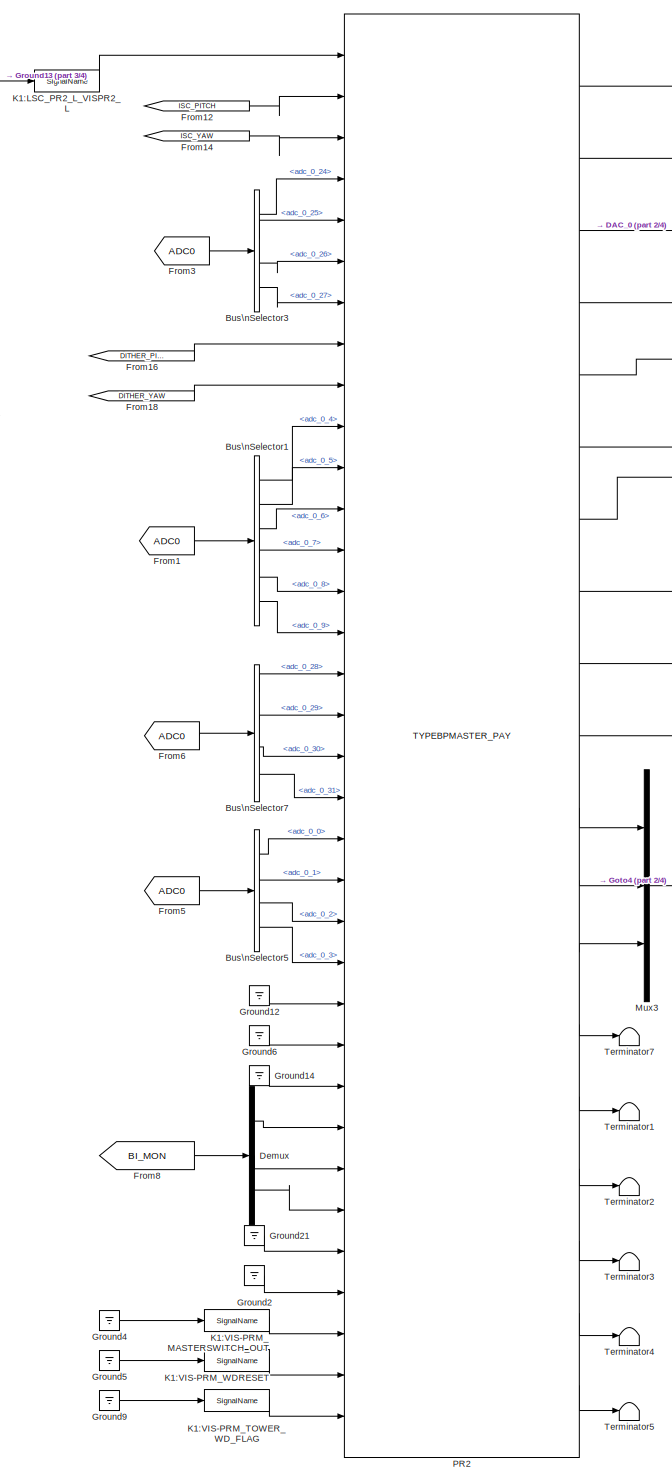
[diagram: root canvas - part 1/4, left side, full height]
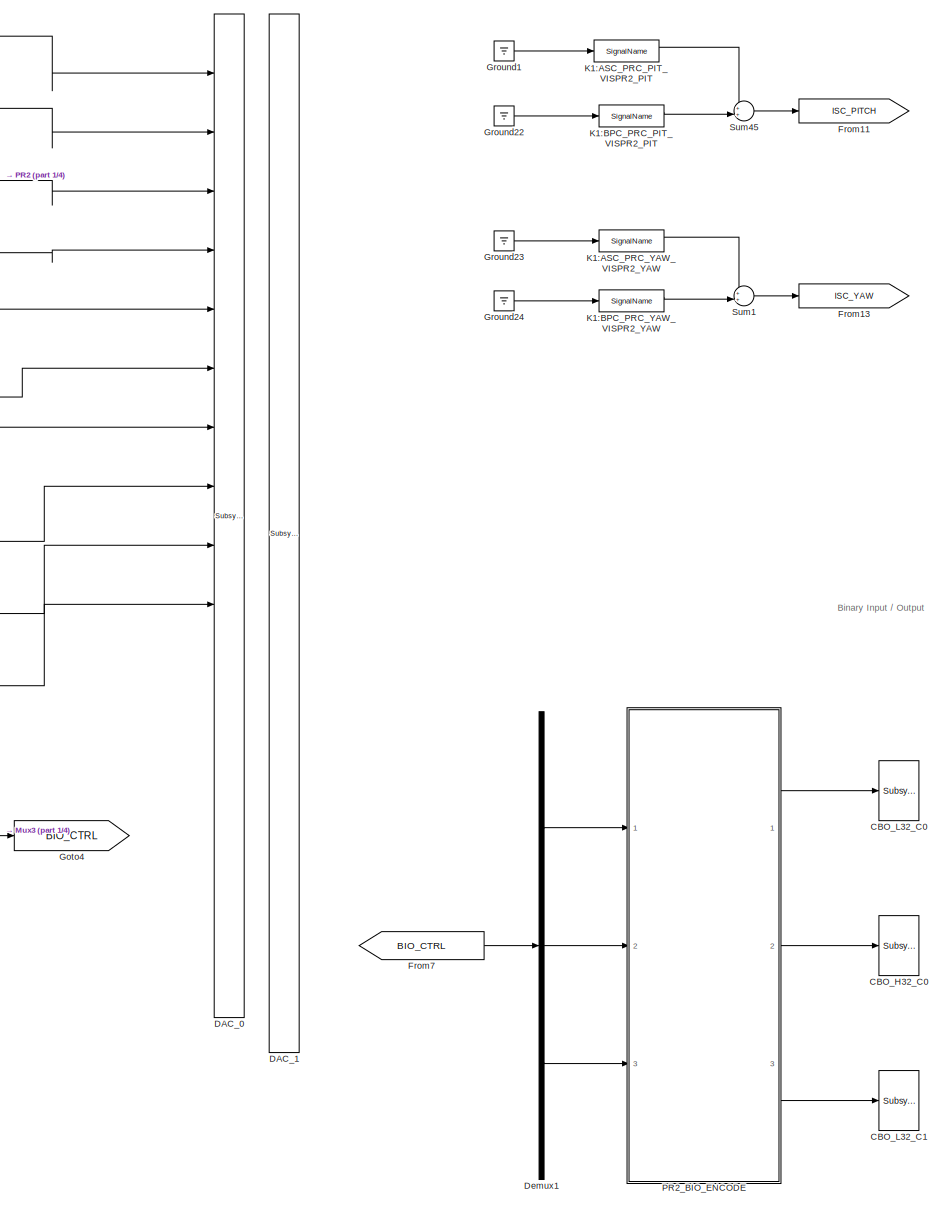
[diagram: root canvas - part 2/4, center side, full height]
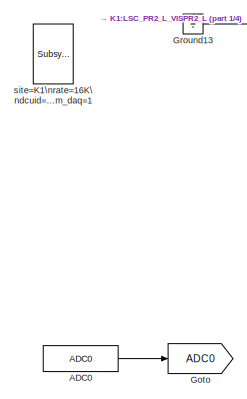
[diagram: root canvas - part 3/4, top left region]
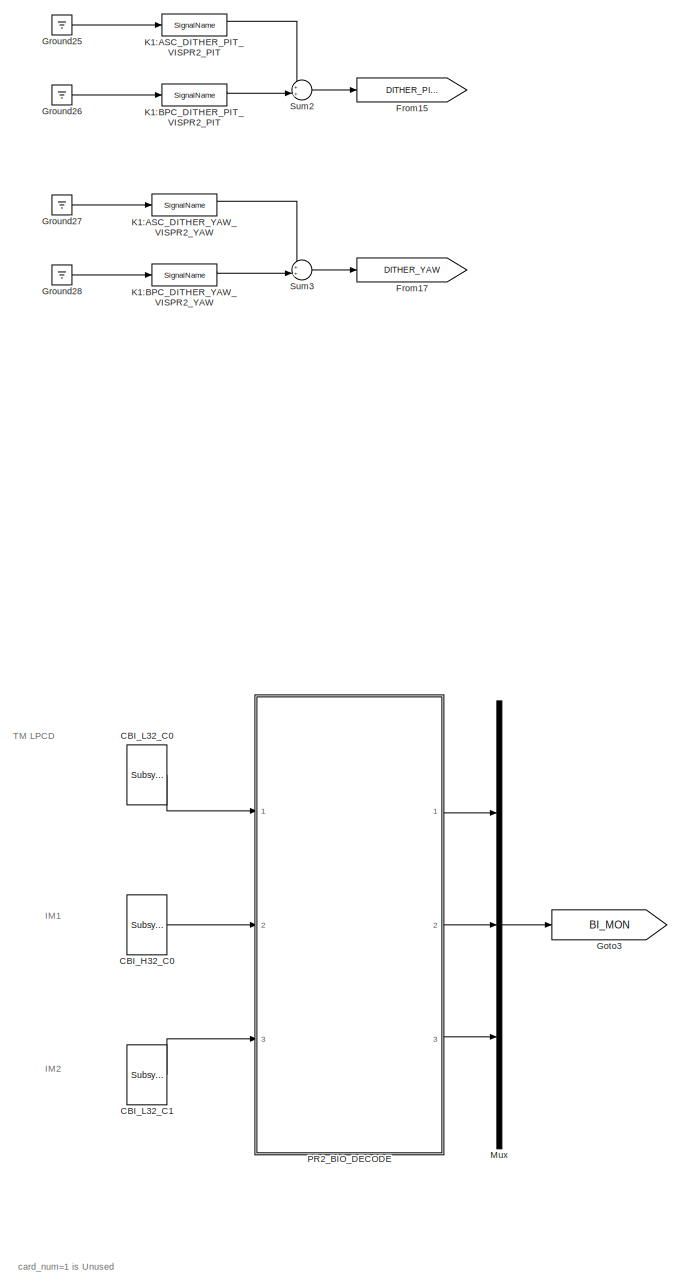
[diagram: root canvas - part 4/4, right side, full height]
MODEL k1vispr2p
KIND model
BLOCK [Reference] ADC0  REF=cdsAdcx0/ADC0
  AttributesFormatString = %<Description>\\n%<Tag>
  Description = type-GSC_16AI64SSA\ncard_num=0
  Ports = [0, 1]
  SID = 5115
  SourceBlock = cdsAdcx0/ADC0
  SourceType = SubSystem
  Tag = cdsAdc
BLOCK [BusSelector] Bus\nSelector1
  AttributesFormatString = %<Description>
  Description = ADC Selector
  OutputSignals = adc_0_4,adc_0_5,adc_0_6,adc_0_7,adc_0_8,adc_0_9
  Ports = [1, 6]
  SID = 5240
BLOCK [BusSelector] Bus\nSelector3
  AttributesFormatString = %<Description>
  Description = ADC Selector
  OutputSignals = adc_0_24,adc_0_25,adc_0_26,adc_0_27
  Ports = [1, 4]
  SID = 5242
BLOCK [BusSelector] Bus\nSelector5
  AttributesFormatString = %<Description>
  Description = ADC Selector
  OutputSignals = adc_0_0,adc_0_1,adc_0_2,adc_0_3
  Ports = [1, 4]
  SID = 5244
BLOCK [BusSelector] Bus\nSelector7
  AttributesFormatString = %<Description>
  Description = ADC Selector
  OutputSignals = adc_0_28,adc_0_29,adc_0_30,adc_0_31
  Ports = [1, 4]
  SID = 5929
BLOCK [Reference] CBI_H32_C0  REF=cdsCDI64/Subsystem
  AttributesFormatString = %<Tag>\\n%<Description>
  Description = card_num=1
  Ports = [0, 1]
  SID = 5271
  SourceBlock = cdsCDI64/Subsystem
  SourceType = SubSystem
  Tag = cdsCDI64
BLOCK [Reference] CBI_L32_C0  REF=cdsCDI64/Subsystem
  AttributesFormatString = %<Tag>\\n%<Description>
  Description = card_num=0
  Ports = [0, 1]
  SID = 5665
  SourceBlock = cdsCDI64/Subsystem
  SourceType = SubSystem
  Tag = cdsCDI64
BLOCK [Reference] CBI_L32_C1  REF=cdsCDI64/Subsystem
  AttributesFormatString = %<Tag>\\n%<Description>
  Description = card_num=2
  Ports = [0, 1]
  SID = 5274
  SourceBlock = cdsCDI64/Subsystem
  SourceType = SubSystem
  Tag = cdsCDI64
BLOCK [Reference] CBO_H32_C0  REF=cdsCDO64/Subsystem
  AttributesFormatString = %<Tag>\\n%<Description>
  Description = card_num=1
  Ports = [1]
  SID = 5276
  SourceBlock = cdsCDO64/Subsystem
  SourceType = SubSystem
  Tag = cdsCDO64
BLOCK [Reference] CBO_L32_C0  REF=cdsCDO64/Subsystem
  AttributesFormatString = %<Tag>\\n%<Description>
  Description = card_num=0
  Ports = [1]
  SID = 5663
  SourceBlock = cdsCDO64/Subsystem
  SourceType = SubSystem
  Tag = cdsCDO64
BLOCK [Reference] CBO_L32_C1  REF=cdsCDO64/Subsystem
  AttributesFormatString = %<Tag>\\n%<Description>
  Description = card_num=2
  Ports = [1]
  SID = 5279
  SourceBlock = cdsCDO64/Subsystem
  SourceType = SubSystem
  Tag = cdsCDO64
BLOCK [Reference] DAC_0  REF=dac/Subsystem  (lib defined in slx_40ef132df75b, slx_b7657ccccc5b, +4 more)
  AttributesFormatString = %<Description>
  Description = type=GSC_16AO16,\ncard_num=0
  Ports = [16]
  SID = 5126
  SourceBlock = dac/Subsystem
  SourceType = SubSystem
BLOCK [Reference] DAC_1  REF=dac/Subsystem  (lib defined in slx_40ef132df75b, slx_b7657ccccc5b, +4 more)
  AttributesFormatString = %<Description>
  Description = type=GSC_16AO16,\ncard_num=1
  Ports = [16]
  SID = 5127
  SourceBlock = dac/Subsystem
  SourceType = SubSystem
BLOCK [Demux] Demux
  DisplayOption = bar
  Outputs = 3
  Ports = [1, 3]
  SID = 5246
BLOCK [Demux] Demux1
  DisplayOption = bar
  Outputs = 3
  Ports = [1, 3]
  SID = 5281
BLOCK [From] From1
  GotoTag = ADC0
  SID = 5247
BLOCK [Goto] From11
  GotoTag = ISC_PITCH
  SID = 5891
BLOCK [From] From12
  GotoTag = ISC_PITCH
  SID = 5892
BLOCK [Goto] From13
  GotoTag = ISC_YAW
  SID = 5897
BLOCK [From] From14
  GotoTag = ISC_YAW
  SID = 5898
BLOCK [Goto] From15
  GotoTag = DITHER_PITCH
  SID = 5900
BLOCK [From] From16
  GotoTag = DITHER_PITCH
  SID = 5901
BLOCK [Goto] From17
  GotoTag = DITHER_YAW
  SID = 5905
BLOCK [From] From18
  GotoTag = DITHER_YAW
  SID = 5906
BLOCK [From] From3
  GotoTag = ADC0
  SID = 5249
BLOCK [From] From5
  GotoTag = ADC0
  SID = 5251
BLOCK [From] From6
  GotoTag = ADC0
  SID = 5930
BLOCK [From] From7
  GotoTag = BIO_CTRL
  SID = 5282
BLOCK [From] From8
  GotoTag = BI_MON
  SID = 5253
BLOCK [Goto] Goto
  GotoTag = ADC0
  SID = 5134
BLOCK [Goto] Goto3
  GotoTag = BI_MON
  SID = 5283
BLOCK [Goto] Goto4
  GotoTag = BIO_CTRL
  SID = 5267
BLOCK [Ground] Ground1
  SID = 5835
BLOCK [Ground] Ground12
  SID = 5262
BLOCK [Ground] Ground13
  SID = 5839
BLOCK [Ground] Ground14
  SID = 5263
BLOCK [Ground] Ground2
  SID = 5914
BLOCK [Ground] Ground21
  SID = 5915
BLOCK [Ground] Ground22
  SID = 5836
BLOCK [Ground] Ground23
  SID = 5895
BLOCK [Ground] Ground24
  SID = 5896
BLOCK [Ground] Ground25
  SID = 5902
BLOCK [Ground] Ground26
  SID = 5903
BLOCK [Ground] Ground27
  SID = 5907
BLOCK [Ground] Ground28
  SID = 5908
BLOCK [Ground] Ground4
  SID = 5923
BLOCK [Ground] Ground5
  SID = 5924
BLOCK [Ground] Ground6
  SID = 5261
BLOCK [Ground] Ground9
  SID = 5925
BLOCK [Reference] K1:ASC_DITHER_PIT_VISPR2_PIT  REF=cdsIPCx/SignalName
  AttributesFormatString = %<Tag>
  Description = Inter-Process Communication via PCI Express network.
  Ports = [1, 2]
  SID = 5887
  SourceBlock = cdsIPCx/SignalName
  SourceType = SubSystem
  Tag = cdsIPCx_PCIE
BLOCK [Reference] K1:ASC_DITHER_YAW_VISPR2_YAW  REF=cdsIPCx/SignalName
  AttributesFormatString = %<Tag>
  Description = Inter-Process Communication via PCI Express network.
  Ports = [1, 2]
  SID = 5888
  SourceBlock = cdsIPCx/SignalName
  SourceType = SubSystem
  Tag = cdsIPCx_PCIE
BLOCK [Reference] K1:ASC_PRC_PIT_VISPR2_PIT  REF=cdsIPCx/SignalName
  AttributesFormatString = %<Tag>
  Description = Inter-Process Communication via PCI Express network.
  Ports = [1, 2]
  SID = 5889
  SourceBlock = cdsIPCx/SignalName
  SourceType = SubSystem
  Tag = cdsIPCx_PCIE
BLOCK [Reference] K1:ASC_PRC_YAW_VISPR2_YAW  REF=cdsIPCx/SignalName
  AttributesFormatString = %<Tag>
  Description = Inter-Process Communication via PCI Express network.
  Ports = [1, 2]
  SID = 5890
  SourceBlock = cdsIPCx/SignalName
  SourceType = SubSystem
  Tag = cdsIPCx_PCIE
BLOCK [Reference] K1:BPC_DITHER_PIT_VISPR2_PIT  REF=cdsIPCx/SignalName
  AttributesFormatString = %<Tag>
  Description = Inter-Process Communication via PCI Express network.
  Ports = [1, 2]
  SID = 5912
  SourceBlock = cdsIPCx/SignalName
  SourceType = SubSystem
  Tag = cdsIPCx_PCIE
BLOCK [Reference] K1:BPC_DITHER_YAW_VISPR2_YAW  REF=cdsIPCx/SignalName
  AttributesFormatString = %<Tag>
  Description = Inter-Process Communication via PCI Express network.
  Ports = [1, 2]
  SID = 5913
  SourceBlock = cdsIPCx/SignalName
  SourceType = SubSystem
  Tag = cdsIPCx_PCIE
BLOCK [Reference] K1:BPC_PRC_PIT_VISPR2_PIT  REF=cdsIPCx/SignalName
  AttributesFormatString = %<Tag>
  Description = Inter-Process Communication via PCI Express network.
  Ports = [1, 2]
  SID = 5894
  SourceBlock = cdsIPCx/SignalName
  SourceType = SubSystem
  Tag = cdsIPCx_PCIE
BLOCK [Reference] K1:BPC_PRC_YAW_VISPR2_YAW  REF=cdsIPCx/SignalName
  AttributesFormatString = %<Tag>
  Description = Inter-Process Communication via PCI Express network.
  Ports = [1, 2]
  SID = 5910
  SourceBlock = cdsIPCx/SignalName
  SourceType = SubSystem
  Tag = cdsIPCx_PCIE
BLOCK [Reference] K1:LSC_PR2_L_VISPR2_L  REF=cdsIPCx/SignalName
  AttributesFormatString = %<Tag>
  Description = Inter-Process Communication via PCI Express network.
  Ports = [1, 2]
  SID = 5840
  SourceBlock = cdsIPCx/SignalName
  SourceType = SubSystem
  Tag = cdsIPCx_PCIE
BLOCK [Reference] K1:VIS-PRM_MASTERSWITCH_OUT  REF=cdsIPCx/SignalName
  AttributesFormatString = %<Tag>
  Description = Inter-Process Communication via Shared memory.
  Ports = [1, 2]
  SID = 5926
  SourceBlock = cdsIPCx/SignalName
  SourceType = SubSystem
  Tag = cdsIPCx_SHMEM
BLOCK [Reference] K1:VIS-PRM_TOWER_WD_FLAG  REF=cdsIPCx/SignalName
  AttributesFormatString = %<Tag>
  Description = Inter-Process Communication via Shared memory.
  Ports = [1, 2]
  SID = 5927
  SourceBlock = cdsIPCx/SignalName
  SourceType = SubSystem
  Tag = cdsIPCx_SHMEM
BLOCK [Reference] K1:VIS-PRM_WDRESET  REF=cdsIPCx/SignalName
  AttributesFormatString = %<Tag>
  Description = Inter-Process Communication via Shared memory.
  Ports = [1, 2]
  SID = 5928
  SourceBlock = cdsIPCx/SignalName
  SourceType = SubSystem
  Tag = cdsIPCx_SHMEM
BLOCK [Mux] Mux
  DisplayOption = bar
  Inputs = 3
  Ports = [3, 1]
  SID = 5285
BLOCK [Mux] Mux3
  DisplayOption = bar
  Inputs = 3
  Ports = [3, 1]
  SID = 5270
BLOCK [Reference] PR2  REF=TYPEBP_MASTER/TYPEBPMASTER_PAY
  AttributesFormatString = %<Description>
  Description = TYPEBP MASTER
  Ports = [34, 19]
  SID = 5916
  SourceBlock = TYPEBP_MASTER/TYPEBPMASTER_PAY
  SourceType = SubSystem
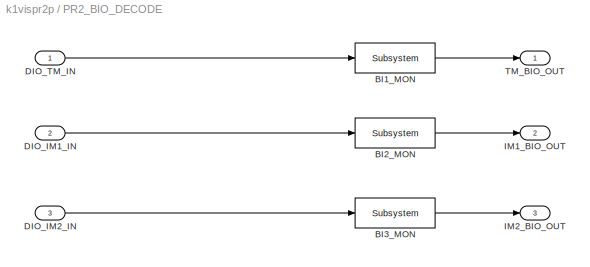
BLOCK [SubSystem] PR2_BIO_DECODE
  Ports = [3, 3]
  RequestExecContextInheritance = off
  SID = 5286
  Variant = off
BLOCK [Reference] PR2_BIO_DECODE/BI1_MON  REF=cdsEpicsOut/Subsystem
  AttributesFormatString = %<Tag>
  Description = Purpose:                                          \nOutput a FE signal to an EPICS channel.           \n                                                  \nOperation:                                        \nTakes input value and passes it to EPICS record.  \n                                                  \nUsage:                                            \nName the part with the desired EPICS...<+14ch>  <repeated x6 — deduplicated; at blocks: BI1_MON, BI2_MON, BI3_MON, DIO_0_OUT, DIO_1_OUT, DIO_2_OUT>
  Ports = [1, 1]
  SID = 5293
  SourceBlock = cdsEpicsOut/Subsystem
  SourceType = SubSystem
  Tag = cdsEpicsOutput
BLOCK [Reference] PR2_BIO_DECODE/BI2_MON  REF=cdsEpicsOut/Subsystem
  AttributesFormatString = %<Tag>
  Ports = [1, 1]
  SID = 5294
  SourceBlock = cdsEpicsOut/Subsystem
  SourceType = SubSystem
  Tag = cdsEpicsOutput
BLOCK [Reference] PR2_BIO_DECODE/BI3_MON  REF=cdsEpicsOut/Subsystem
  AttributesFormatString = %<Tag>
  Ports = [1, 1]
  SID = 5295
  SourceBlock = cdsEpicsOut/Subsystem
  SourceType = SubSystem
  Tag = cdsEpicsOutput
BLOCK [Inport] PR2_BIO_DECODE/DIO_IM1_IN
  IconDisplay = Port number
  Port = 2
  SID = 5288
BLOCK [Inport] PR2_BIO_DECODE/DIO_IM2_IN
  IconDisplay = Port number
  Port = 3
  SID = 5289
BLOCK [Inport] PR2_BIO_DECODE/DIO_TM_IN
  IconDisplay = Port number
  SID = 5287
BLOCK [Outport] PR2_BIO_DECODE/IM1_BIO_OUT
  IconDisplay = Port number
  Port = 2
  SID = 5300
BLOCK [Outport] PR2_BIO_DECODE/IM2_BIO_OUT
  IconDisplay = Port number
  Port = 3
  SID = 5301
BLOCK [Outport] PR2_BIO_DECODE/TM_BIO_OUT
  IconDisplay = Port number
  SID = 5299
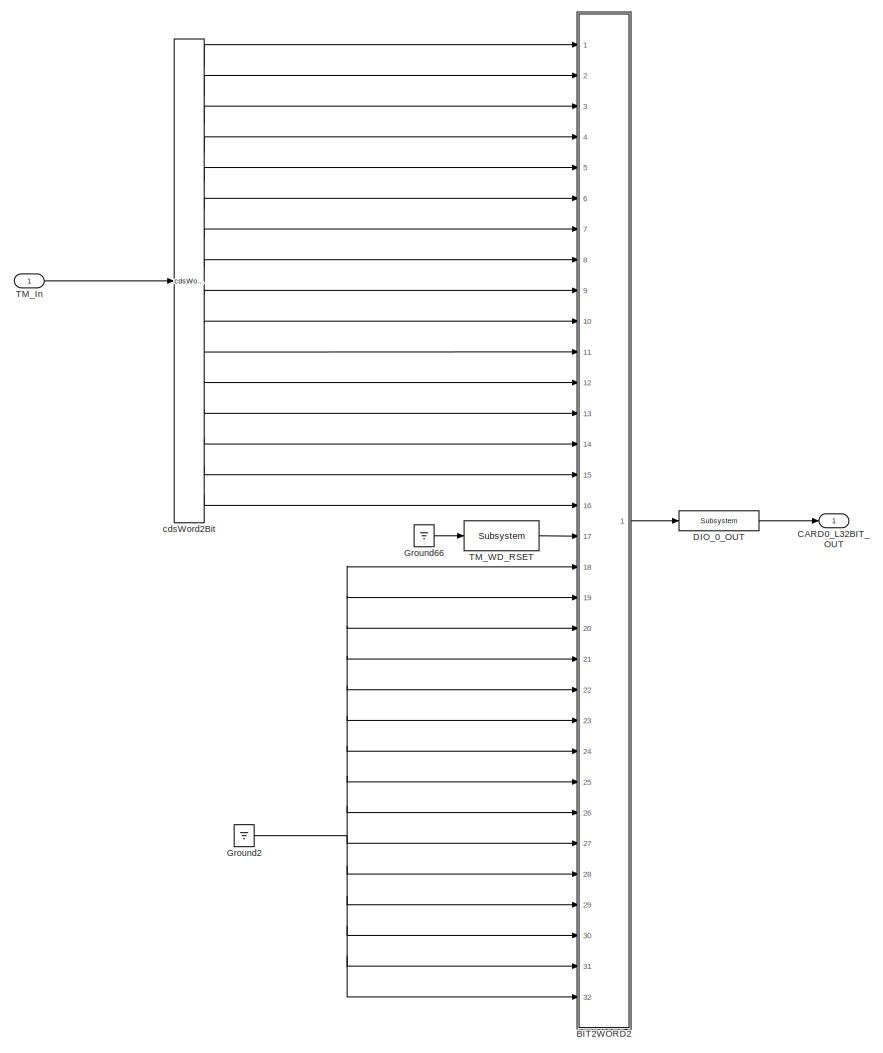
[diagram: PR2_BIO_ENCODE - part 1/3, top left region]
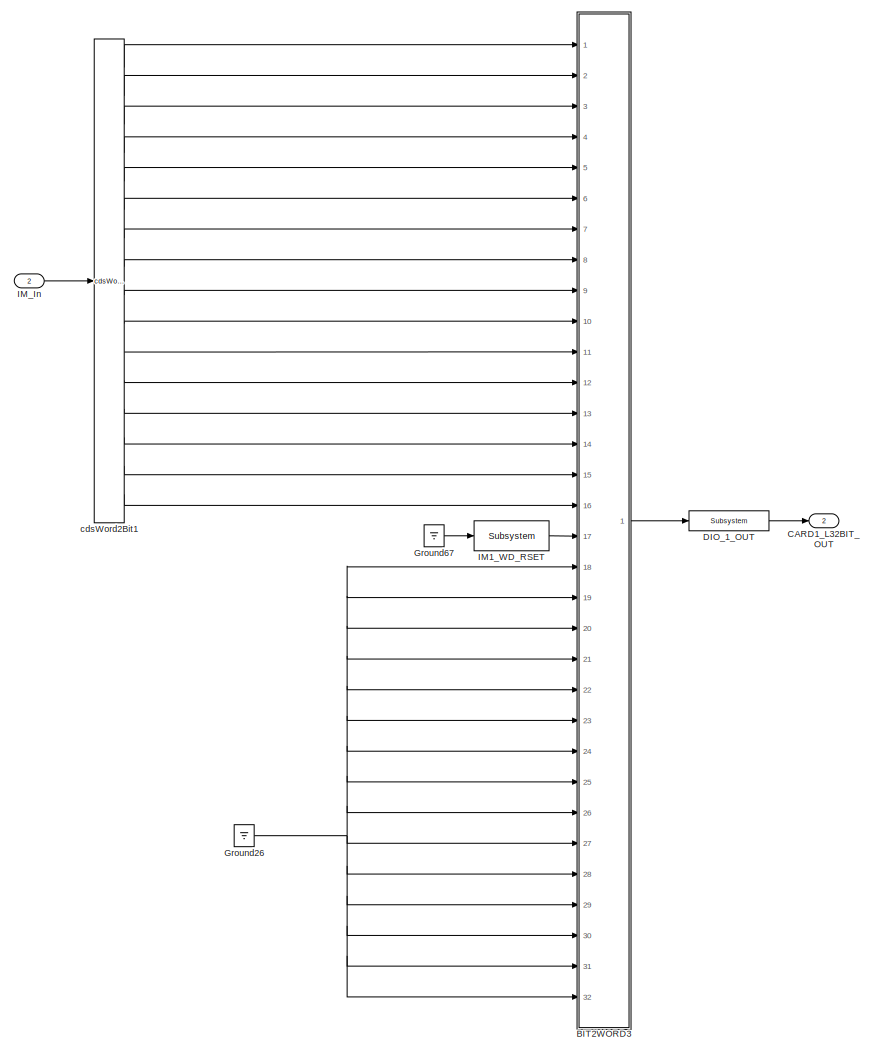
[diagram: PR2_BIO_ENCODE - part 2/3, top right region]
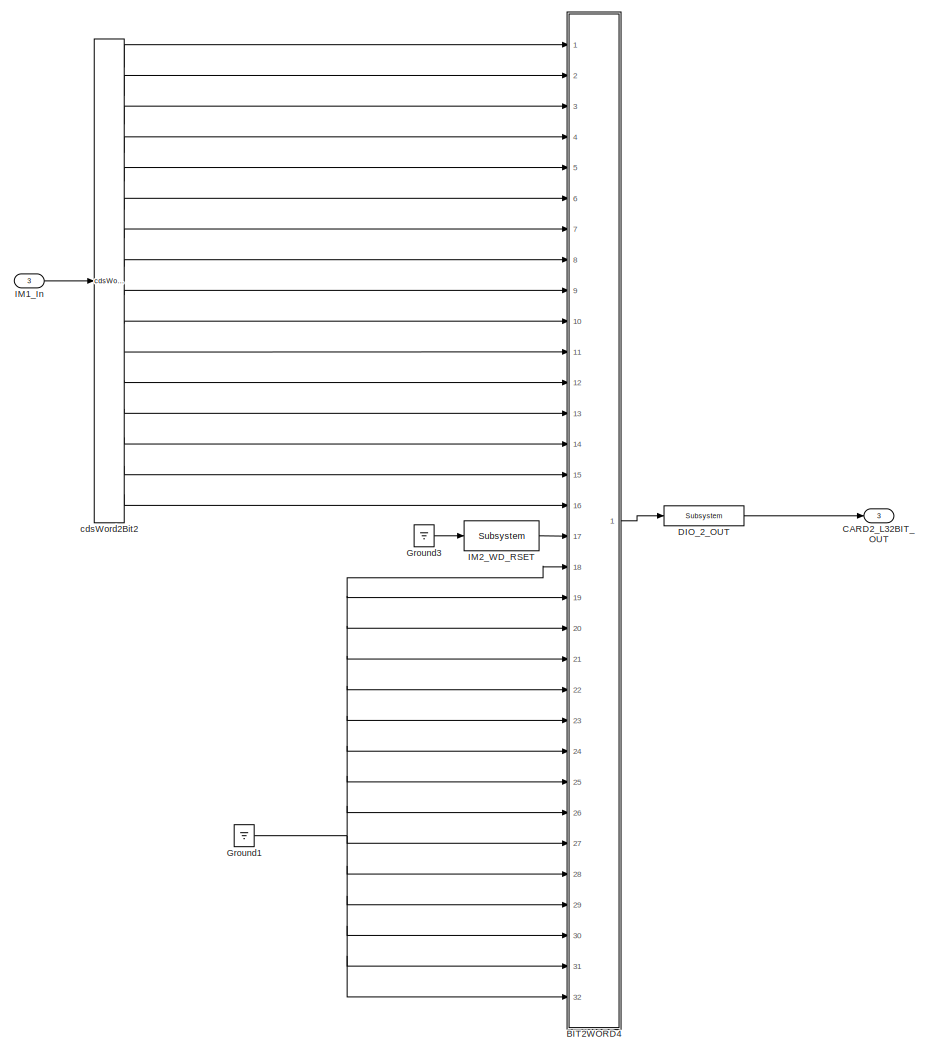
[diagram: PR2_BIO_ENCODE - part 3/3, bottom left region]
BLOCK [SubSystem] PR2_BIO_ENCODE
  Ports = [3, 3]
  RequestExecContextInheritance = off
  SID = 5305
  Variant = off
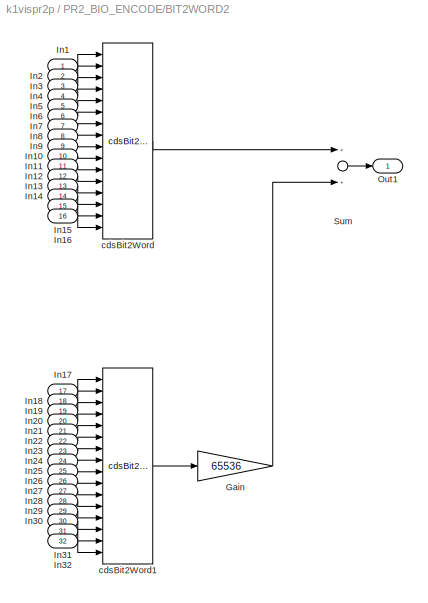
BLOCK [SubSystem] PR2_BIO_ENCODE/BIT2WORD2
  Ports = [32, 1]
  RequestExecContextInheritance = off
  SID = 5352
  Variant = off
BLOCK [Gain] PR2_BIO_ENCODE/BIT2WORD2/Gain
  Gain = 65536
  OutDataTypeStr = Inherit: Inherit via internal rule
  ParamDataTypeStr = Inherit: Inherit via internal rule
  SID = 5385
  SaturateOnIntegerOverflow = off
BLOCK [Inport] PR2_BIO_ENCODE/BIT2WORD2/In1
  IconDisplay = Port number
  SID = 5353
BLOCK [Inport] PR2_BIO_ENCODE/BIT2WORD2/In10
  IconDisplay = Port number
  Port = 10
  SID = 5362
BLOCK [Inport] PR2_BIO_ENCODE/BIT2WORD2/In11
  IconDisplay = Port number
  Port = 11
  SID = 5363
BLOCK [Inport] PR2_BIO_ENCODE/BIT2WORD2/In12
  IconDisplay = Port number
  Port = 12
  SID = 5364
BLOCK [Inport] PR2_BIO_ENCODE/BIT2WORD2/In13
  IconDisplay = Port number
  Port = 13
  SID = 5365
BLOCK [Inport] PR2_BIO_ENCODE/BIT2WORD2/In14
  IconDisplay = Port number
  Port = 14
  SID = 5366
BLOCK [Inport] PR2_BIO_ENCODE/BIT2WORD2/In15
  IconDisplay = Port number
  Port = 15
  SID = 5367
BLOCK [Inport] PR2_BIO_ENCODE/BIT2WORD2/In16
  IconDisplay = Port number
  Port = 16
  SID = 5368
BLOCK [Inport] PR2_BIO_ENCODE/BIT2WORD2/In17
  IconDisplay = Port number
  Port = 17
  SID = 5369
BLOCK [Inport] PR2_BIO_ENCODE/BIT2WORD2/In18
  IconDisplay = Port number
  Port = 18
  SID = 5370
BLOCK [Inport] PR2_BIO_ENCODE/BIT2WORD2/In19
  IconDisplay = Port number
  Port = 19
  SID = 5371
BLOCK [Inport] PR2_BIO_ENCODE/BIT2WORD2/In2
  IconDisplay = Port number
  Port = 2
  SID = 5354
BLOCK [Inport] PR2_BIO_ENCODE/BIT2WORD2/In20
  IconDisplay = Port number
  Port = 20
  SID = 5372
BLOCK [Inport] PR2_BIO_ENCODE/BIT2WORD2/In21
  IconDisplay = Port number
  Port = 21
  SID = 5373
BLOCK [Inport] PR2_BIO_ENCODE/BIT2WORD2/In22
  IconDisplay = Port number
  Port = 22
  SID = 5374
BLOCK [Inport] PR2_BIO_ENCODE/BIT2WORD2/In23
  IconDisplay = Port number
  Port = 23
  SID = 5375
BLOCK [Inport] PR2_BIO_ENCODE/BIT2WORD2/In24
  IconDisplay = Port number
  Port = 24
  SID = 5376
BLOCK [Inport] PR2_BIO_ENCODE/BIT2WORD2/In25
  IconDisplay = Port number
  Port = 25
  SID = 5377
BLOCK [Inport] PR2_BIO_ENCODE/BIT2WORD2/In26
  IconDisplay = Port number
  Port = 26
  SID = 5378
BLOCK [Inport] PR2_BIO_ENCODE/BIT2WORD2/In27
  IconDisplay = Port number
  Port = 27
  SID = 5379
BLOCK [Inport] PR2_BIO_ENCODE/BIT2WORD2/In28
  IconDisplay = Port number
  Port = 28
  SID = 5380
BLOCK [Inport] PR2_BIO_ENCODE/BIT2WORD2/In29
  IconDisplay = Port number
  Port = 29
  SID = 5381
BLOCK [Inport] PR2_BIO_ENCODE/BIT2WORD2/In3
  IconDisplay = Port number
  Port = 3
  SID = 5355
BLOCK [Inport] PR2_BIO_ENCODE/BIT2WORD2/In30
  IconDisplay = Port number
  Port = 30
  SID = 5382
BLOCK [Inport] PR2_BIO_ENCODE/BIT2WORD2/In31
  IconDisplay = Port number
  Port = 31
  SID = 5383
BLOCK [Inport] PR2_BIO_ENCODE/BIT2WORD2/In32
  IconDisplay = Port number
  Port = 32
  SID = 5384
BLOCK [Inport] PR2_BIO_ENCODE/BIT2WORD2/In4
  IconDisplay = Port number
  Port = 4
  SID = 5356
BLOCK [Inport] PR2_BIO_ENCODE/BIT2WORD2/In5
  IconDisplay = Port number
  Port = 5
  SID = 5357
BLOCK [Inport] PR2_BIO_ENCODE/BIT2WORD2/In6
  IconDisplay = Port number
  Port = 6
  SID = 5358
BLOCK [Inport] PR2_BIO_ENCODE/BIT2WORD2/In7
  IconDisplay = Port number
  Port = 7
  SID = 5359
BLOCK [Inport] PR2_BIO_ENCODE/BIT2WORD2/In8
  IconDisplay = Port number
  Port = 8
  SID = 5360
BLOCK [Inport] PR2_BIO_ENCODE/BIT2WORD2/In9
  IconDisplay = Port number
  Port = 9
  SID = 5361
BLOCK [Outport] PR2_BIO_ENCODE/BIT2WORD2/Out1
  IconDisplay = Port number
  SID = 5389
BLOCK [Sum] PR2_BIO_ENCODE/BIT2WORD2/Sum
  InputSameDT = off
  OutDataTypeStr = Inherit: Inherit via internal rule
  Ports = [2, 1]
  SID = 5386
  SaturateOnIntegerOverflow = off
BLOCK [Reference] PR2_BIO_ENCODE/BIT2WORD2/cdsBit2Word  REF=cdsBit2Word/cdsBit2Word
  AttributesFormatString = %<Tag>
  Description = Forms single 16 bit integer from 16 0/1 inputs.
  Ports = [16, 1]
  SID = 5387
  SourceBlock = cdsBit2Word/cdsBit2Word
  SourceType = SubSystem
  Tag = cdsBit2Word
BLOCK [Reference] PR2_BIO_ENCODE/BIT2WORD2/cdsBit2Word1  REF=cdsBit2Word/cdsBit2Word
  AttributesFormatString = %<Tag>
  Description = Forms single 16 bit integer from 16 0/1 inputs.
  Ports = [16, 1]
  SID = 5388
  SourceBlock = cdsBit2Word/cdsBit2Word
  SourceType = SubSystem
  Tag = cdsBit2Word
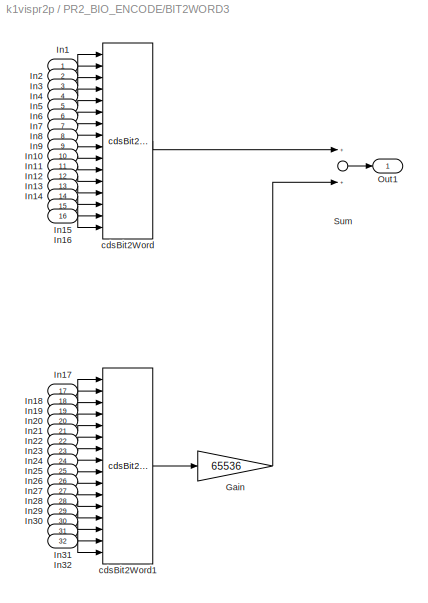
BLOCK [SubSystem] PR2_BIO_ENCODE/BIT2WORD3
  Ports = [32, 1]
  RequestExecContextInheritance = off
  SID = 5390
  Variant = off
BLOCK [Gain] PR2_BIO_ENCODE/BIT2WORD3/Gain
  Gain = 65536
  OutDataTypeStr = Inherit: Inherit via internal rule
  ParamDataTypeStr = Inherit: Inherit via internal rule
  SID = 5423
  SaturateOnIntegerOverflow = off
BLOCK [Inport] PR2_BIO_ENCODE/BIT2WORD3/In1
  IconDisplay = Port number
  SID = 5391
BLOCK [Inport] PR2_BIO_ENCODE/BIT2WORD3/In10
  IconDisplay = Port number
  Port = 10
  SID = 5400
BLOCK [Inport] PR2_BIO_ENCODE/BIT2WORD3/In11
  IconDisplay = Port number
  Port = 11
  SID = 5401
BLOCK [Inport] PR2_BIO_ENCODE/BIT2WORD3/In12
  IconDisplay = Port number
  Port = 12
  SID = 5402
BLOCK [Inport] PR2_BIO_ENCODE/BIT2WORD3/In13
  IconDisplay = Port number
  Port = 13
  SID = 5403
BLOCK [Inport] PR2_BIO_ENCODE/BIT2WORD3/In14
  IconDisplay = Port number
  Port = 14
  SID = 5404
BLOCK [Inport] PR2_BIO_ENCODE/BIT2WORD3/In15
  IconDisplay = Port number
  Port = 15
  SID = 5405
BLOCK [Inport] PR2_BIO_ENCODE/BIT2WORD3/In16
  IconDisplay = Port number
  Port = 16
  SID = 5406
BLOCK [Inport] PR2_BIO_ENCODE/BIT2WORD3/In17
  IconDisplay = Port number
  Port = 17
  SID = 5407
BLOCK [Inport] PR2_BIO_ENCODE/BIT2WORD3/In18
  IconDisplay = Port number
  Port = 18
  SID = 5408
BLOCK [Inport] PR2_BIO_ENCODE/BIT2WORD3/In19
  IconDisplay = Port number
  Port = 19
  SID = 5409
BLOCK [Inport] PR2_BIO_ENCODE/BIT2WORD3/In2
  IconDisplay = Port number
  Port = 2
  SID = 5392
BLOCK [Inport] PR2_BIO_ENCODE/BIT2WORD3/In20
  IconDisplay = Port number
  Port = 20
  SID = 5410
BLOCK [Inport] PR2_BIO_ENCODE/BIT2WORD3/In21
  IconDisplay = Port number
  Port = 21
  SID = 5411
BLOCK [Inport] PR2_BIO_ENCODE/BIT2WORD3/In22
  IconDisplay = Port number
  Port = 22
  SID = 5412
BLOCK [Inport] PR2_BIO_ENCODE/BIT2WORD3/In23
  IconDisplay = Port number
  Port = 23
  SID = 5413
BLOCK [Inport] PR2_BIO_ENCODE/BIT2WORD3/In24
  IconDisplay = Port number
  Port = 24
  SID = 5414
BLOCK [Inport] PR2_BIO_ENCODE/BIT2WORD3/In25
  IconDisplay = Port number
  Port = 25
  SID = 5415
BLOCK [Inport] PR2_BIO_ENCODE/BIT2WORD3/In26
  IconDisplay = Port number
  Port = 26
  SID = 5416
BLOCK [Inport] PR2_BIO_ENCODE/BIT2WORD3/In27
  IconDisplay = Port number
  Port = 27
  SID = 5417
BLOCK [Inport] PR2_BIO_ENCODE/BIT2WORD3/In28
  IconDisplay = Port number
  Port = 28
  SID = 5418
BLOCK [Inport] PR2_BIO_ENCODE/BIT2WORD3/In29
  IconDisplay = Port number
  Port = 29
  SID = 5419
BLOCK [Inport] PR2_BIO_ENCODE/BIT2WORD3/In3
  IconDisplay = Port number
  Port = 3
  SID = 5393
BLOCK [Inport] PR2_BIO_ENCODE/BIT2WORD3/In30
  IconDisplay = Port number
  Port = 30
  SID = 5420
BLOCK [Inport] PR2_BIO_ENCODE/BIT2WORD3/In31
  IconDisplay = Port number
  Port = 31
  SID = 5421
BLOCK [Inport] PR2_BIO_ENCODE/BIT2WORD3/In32
  IconDisplay = Port number
  Port = 32
  SID = 5422
BLOCK [Inport] PR2_BIO_ENCODE/BIT2WORD3/In4
  IconDisplay = Port number
  Port = 4
  SID = 5394
BLOCK [Inport] PR2_BIO_ENCODE/BIT2WORD3/In5
  IconDisplay = Port number
  Port = 5
  SID = 5395
BLOCK [Inport] PR2_BIO_ENCODE/BIT2WORD3/In6
  IconDisplay = Port number
  Port = 6
  SID = 5396
BLOCK [Inport] PR2_BIO_ENCODE/BIT2WORD3/In7
  IconDisplay = Port number
  Port = 7
  SID = 5397
BLOCK [Inport] PR2_BIO_ENCODE/BIT2WORD3/In8
  IconDisplay = Port number
  Port = 8
  SID = 5398
BLOCK [Inport] PR2_BIO_ENCODE/BIT2WORD3/In9
  IconDisplay = Port number
  Port = 9
  SID = 5399
BLOCK [Outport] PR2_BIO_ENCODE/BIT2WORD3/Out1
  IconDisplay = Port number
  SID = 5427
BLOCK [Sum] PR2_BIO_ENCODE/BIT2WORD3/Sum
  InputSameDT = off
  OutDataTypeStr = Inherit: Inherit via internal rule
  Ports = [2, 1]
  SID = 5424
  SaturateOnIntegerOverflow = off
BLOCK [Reference] PR2_BIO_ENCODE/BIT2WORD3/cdsBit2Word  REF=cdsBit2Word/cdsBit2Word
  AttributesFormatString = %<Tag>
  Description = Forms single 16 bit integer from 16 0/1 inputs.
  Ports = [16, 1]
  SID = 5425
  SourceBlock = cdsBit2Word/cdsBit2Word
  SourceType = SubSystem
  Tag = cdsBit2Word
BLOCK [Reference] PR2_BIO_ENCODE/BIT2WORD3/cdsBit2Word1  REF=cdsBit2Word/cdsBit2Word
  AttributesFormatString = %<Tag>
  Description = Forms single 16 bit integer from 16 0/1 inputs.
  Ports = [16, 1]
  SID = 5426
  SourceBlock = cdsBit2Word/cdsBit2Word
  SourceType = SubSystem
  Tag = cdsBit2Word
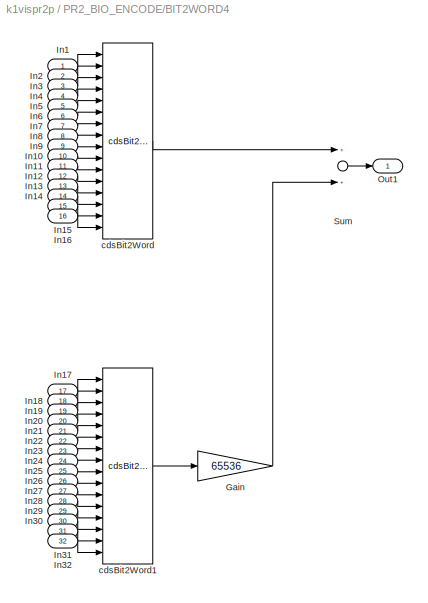
BLOCK [SubSystem] PR2_BIO_ENCODE/BIT2WORD4
  Ports = [32, 1]
  RequestExecContextInheritance = off
  SID = 5428
  Variant = off
BLOCK [Gain] PR2_BIO_ENCODE/BIT2WORD4/Gain
  Gain = 65536
  OutDataTypeStr = Inherit: Inherit via internal rule
  ParamDataTypeStr = Inherit: Inherit via internal rule
  SID = 5461
  SaturateOnIntegerOverflow = off
BLOCK [Inport] PR2_BIO_ENCODE/BIT2WORD4/In1
  IconDisplay = Port number
  SID = 5429
BLOCK [Inport] PR2_BIO_ENCODE/BIT2WORD4/In10
  IconDisplay = Port number
  Port = 10
  SID = 5438
BLOCK [Inport] PR2_BIO_ENCODE/BIT2WORD4/In11
  IconDisplay = Port number
  Port = 11
  SID = 5439
BLOCK [Inport] PR2_BIO_ENCODE/BIT2WORD4/In12
  IconDisplay = Port number
  Port = 12
  SID = 5440
BLOCK [Inport] PR2_BIO_ENCODE/BIT2WORD4/In13
  IconDisplay = Port number
  Port = 13
  SID = 5441
BLOCK [Inport] PR2_BIO_ENCODE/BIT2WORD4/In14
  IconDisplay = Port number
  Port = 14
  SID = 5442
BLOCK [Inport] PR2_BIO_ENCODE/BIT2WORD4/In15
  IconDisplay = Port number
  Port = 15
  SID = 5443
BLOCK [Inport] PR2_BIO_ENCODE/BIT2WORD4/In16
  IconDisplay = Port number
  Port = 16
  SID = 5444
BLOCK [Inport] PR2_BIO_ENCODE/BIT2WORD4/In17
  IconDisplay = Port number
  Port = 17
  SID = 5445
BLOCK [Inport] PR2_BIO_ENCODE/BIT2WORD4/In18
  IconDisplay = Port number
  Port = 18
  SID = 5446
BLOCK [Inport] PR2_BIO_ENCODE/BIT2WORD4/In19
  IconDisplay = Port number
  Port = 19
  SID = 5447
BLOCK [Inport] PR2_BIO_ENCODE/BIT2WORD4/In2
  IconDisplay = Port number
  Port = 2
  SID = 5430
BLOCK [Inport] PR2_BIO_ENCODE/BIT2WORD4/In20
  IconDisplay = Port number
  Port = 20
  SID = 5448
BLOCK [Inport] PR2_BIO_ENCODE/BIT2WORD4/In21
  IconDisplay = Port number
  Port = 21
  SID = 5449
BLOCK [Inport] PR2_BIO_ENCODE/BIT2WORD4/In22
  IconDisplay = Port number
  Port = 22
  SID = 5450
BLOCK [Inport] PR2_BIO_ENCODE/BIT2WORD4/In23
  IconDisplay = Port number
  Port = 23
  SID = 5451
BLOCK [Inport] PR2_BIO_ENCODE/BIT2WORD4/In24
  IconDisplay = Port number
  Port = 24
  SID = 5452
BLOCK [Inport] PR2_BIO_ENCODE/BIT2WORD4/In25
  IconDisplay = Port number
  Port = 25
  SID = 5453
BLOCK [Inport] PR2_BIO_ENCODE/BIT2WORD4/In26
  IconDisplay = Port number
  Port = 26
  SID = 5454
BLOCK [Inport] PR2_BIO_ENCODE/BIT2WORD4/In27
  IconDisplay = Port number
  Port = 27
  SID = 5455
BLOCK [Inport] PR2_BIO_ENCODE/BIT2WORD4/In28
  IconDisplay = Port number
  Port = 28
  SID = 5456
BLOCK [Inport] PR2_BIO_ENCODE/BIT2WORD4/In29
  IconDisplay = Port number
  Port = 29
  SID = 5457
BLOCK [Inport] PR2_BIO_ENCODE/BIT2WORD4/In3
  IconDisplay = Port number
  Port = 3
  SID = 5431
BLOCK [Inport] PR2_BIO_ENCODE/BIT2WORD4/In30
  IconDisplay = Port number
  Port = 30
  SID = 5458
BLOCK [Inport] PR2_BIO_ENCODE/BIT2WORD4/In31
  IconDisplay = Port number
  Port = 31
  SID = 5459
BLOCK [Inport] PR2_BIO_ENCODE/BIT2WORD4/In32
  IconDisplay = Port number
  Port = 32
  SID = 5460
BLOCK [Inport] PR2_BIO_ENCODE/BIT2WORD4/In4
  IconDisplay = Port number
  Port = 4
  SID = 5432
BLOCK [Inport] PR2_BIO_ENCODE/BIT2WORD4/In5
  IconDisplay = Port number
  Port = 5
  SID = 5433
BLOCK [Inport] PR2_BIO_ENCODE/BIT2WORD4/In6
  IconDisplay = Port number
  Port = 6
  SID = 5434
BLOCK [Inport] PR2_BIO_ENCODE/BIT2WORD4/In7
  IconDisplay = Port number
  Port = 7
  SID = 5435
BLOCK [Inport] PR2_BIO_ENCODE/BIT2WORD4/In8
  IconDisplay = Port number
  Port = 8
  SID = 5436
BLOCK [Inport] PR2_BIO_ENCODE/BIT2WORD4/In9
  IconDisplay = Port number
  Port = 9
  SID = 5437
BLOCK [Outport] PR2_BIO_ENCODE/BIT2WORD4/Out1
  IconDisplay = Port number
  SID = 5465
BLOCK [Sum] PR2_BIO_ENCODE/BIT2WORD4/Sum
  InputSameDT = off
  OutDataTypeStr = Inherit: Inherit via internal rule
  Ports = [2, 1]
  SID = 5462
  SaturateOnIntegerOverflow = off
BLOCK [Reference] PR2_BIO_ENCODE/BIT2WORD4/cdsBit2Word  REF=cdsBit2Word/cdsBit2Word
  AttributesFormatString = %<Tag>
  Description = Forms single 16 bit integer from 16 0/1 inputs.
  Ports = [16, 1]
  SID = 5463
  SourceBlock = cdsBit2Word/cdsBit2Word
  SourceType = SubSystem
  Tag = cdsBit2Word
BLOCK [Reference] PR2_BIO_ENCODE/BIT2WORD4/cdsBit2Word1  REF=cdsBit2Word/cdsBit2Word
  AttributesFormatString = %<Tag>
  Description = Forms single 16 bit integer from 16 0/1 inputs.
  Ports = [16, 1]
  SID = 5464
  SourceBlock = cdsBit2Word/cdsBit2Word
  SourceType = SubSystem
  Tag = cdsBit2Word
BLOCK [Outport] PR2_BIO_ENCODE/CARD0_L32BIT_OUT
  IconDisplay = Port number
  SID = 5570
BLOCK [Outport] PR2_BIO_ENCODE/CARD1_L32BIT_OUT
  IconDisplay = Port number
  Port = 2
  SID = 5571
BLOCK [Outport] PR2_BIO_ENCODE/CARD2_L32BIT_OUT
  IconDisplay = Port number
  Port = 3
  SID = 5572
BLOCK [Reference] PR2_BIO_ENCODE/DIO_0_OUT  REF=cdsEpicsOut/Subsystem
  AttributesFormatString = %<Tag>
  Ports = [1, 1]
  SID = 5542
  SourceBlock = cdsEpicsOut/Subsystem
  SourceType = SubSystem
  Tag = cdsEpicsOutput
BLOCK [Reference] PR2_BIO_ENCODE/DIO_1_OUT  REF=cdsEpicsOut/Subsystem
  AttributesFormatString = %<Tag>
  Ports = [1, 1]
  SID = 5543
  SourceBlock = cdsEpicsOut/Subsystem
  SourceType = SubSystem
  Tag = cdsEpicsOutput
BLOCK [Reference] PR2_BIO_ENCODE/DIO_2_OUT  REF=cdsEpicsOut/Subsystem
  AttributesFormatString = %<Tag>
  Ports = [1, 1]
  SID = 5544
  SourceBlock = cdsEpicsOut/Subsystem
  SourceType = SubSystem
  Tag = cdsEpicsOutput
BLOCK [Ground] PR2_BIO_ENCODE/Ground1
  SID = 5549
BLOCK [Ground] PR2_BIO_ENCODE/Ground2
  SID = 5550
BLOCK [Ground] PR2_BIO_ENCODE/Ground26
  SID = 5551
BLOCK [Ground] PR2_BIO_ENCODE/Ground3
  SID = 5552
BLOCK [Ground] PR2_BIO_ENCODE/Ground66
  SID = 5556
BLOCK [Ground] PR2_BIO_ENCODE/Ground67
  SID = 5557
BLOCK [Inport] PR2_BIO_ENCODE/IM1_In
  IconDisplay = Port number
  Port = 3
  SID = 5308
BLOCK [Reference] PR2_BIO_ENCODE/IM1_WD_RSET  REF=cdsEpicsBinIn/Subsystem
  AttributesFormatString = %<Tag>
  Description = Purpose:                                                                            \nCreate an EPICS binary (0 or 1) input channel to the FE realtime controls.          \n                                                                                    \nOperation:                                                                          \nOutputs value from an EPICS ai record. Value is binary i...<+252ch>  <repeated x3 — deduplicated; at blocks: IM1_WD_RSET, IM2_WD_RSET, TM_WD_RSET>
  Ports = [1, 1]
  SID = 5561
  SourceBlock = cdsEpicsBinIn/Subsystem
  SourceType = SubSystem
  Tag = cdsEpicsBinIn
BLOCK [Reference] PR2_BIO_ENCODE/IM2_WD_RSET  REF=cdsEpicsBinIn/Subsystem
  AttributesFormatString = %<Tag>
  Ports = [1, 1]
  SID = 5562
  SourceBlock = cdsEpicsBinIn/Subsystem
  SourceType = SubSystem
  Tag = cdsEpicsBinIn
BLOCK [Inport] PR2_BIO_ENCODE/IM_In
  IconDisplay = Port number
  Port = 2
  SID = 5307
BLOCK [Inport] PR2_BIO_ENCODE/TM_In
  IconDisplay = Port number
  SID = 5306
BLOCK [Reference] PR2_BIO_ENCODE/TM_WD_RSET  REF=cdsEpicsBinIn/Subsystem
  AttributesFormatString = %<Tag>
  Ports = [1, 1]
  SID = 5563
  SourceBlock = cdsEpicsBinIn/Subsystem
  SourceType = SubSystem
  Tag = cdsEpicsBinIn
BLOCK [Reference] PR2_BIO_ENCODE/cdsWord2Bit  REF=cdsWord2Bit/cdsWord2Bit
  AttributesFormatString = cdsWord2Bit
  Description = Generate 16 0/1 outputs from single 16-bit integer input
  Ports = [1, 16]
  SID = 5564
  SourceBlock = cdsWord2Bit/cdsWord2Bit
  SourceType = SubSystem
  Tag = cdsWord2Bit
BLOCK [Reference] PR2_BIO_ENCODE/cdsWord2Bit1  REF=cdsWord2Bit/cdsWord2Bit
  AttributesFormatString = cdsWord2Bit
  Description = Generate 16 0/1 outputs from single 16-bit integer input
  Ports = [1, 16]
  SID = 5565
  SourceBlock = cdsWord2Bit/cdsWord2Bit
  SourceType = SubSystem
  Tag = cdsWord2Bit
BLOCK [Reference] PR2_BIO_ENCODE/cdsWord2Bit2  REF=cdsWord2Bit/cdsWord2Bit
  AttributesFormatString = cdsWord2Bit
  Description = Generate 16 0/1 outputs from single 16-bit integer input
  Ports = [1, 16]
  SID = 5566
  SourceBlock = cdsWord2Bit/cdsWord2Bit
  SourceType = SubSystem
  Tag = cdsWord2Bit
BLOCK [Sum] Sum1
  IconShape = round
  InputSameDT = off
  Inputs = ++|
  OutDataTypeStr = Inherit: Inherit via internal rule
  Ports = [2, 1]
  SID = 5899
  SaturateOnIntegerOverflow = off
BLOCK [Sum] Sum2
  IconShape = round
  InputSameDT = off
  Inputs = ++|
  OutDataTypeStr = Inherit: Inherit via internal rule
  Ports = [2, 1]
  SID = 5904
  SaturateOnIntegerOverflow = off
BLOCK [Sum] Sum3
  IconShape = round
  InputSameDT = off
  Inputs = ++|
  OutDataTypeStr = Inherit: Inherit via internal rule
  Ports = [2, 1]
  SID = 5909
  SaturateOnIntegerOverflow = off
BLOCK [Sum] Sum45
  IconShape = round
  InputSameDT = off
  Inputs = ++|
  OutDataTypeStr = Inherit: Inherit via internal rule
  Ports = [2, 1]
  SID = 5893
  SaturateOnIntegerOverflow = off
BLOCK [Terminator] Terminator1
  SID = 5917
BLOCK [Terminator] Terminator2
  SID = 5918
BLOCK [Terminator] Terminator3
  SID = 5919
BLOCK [Terminator] Terminator4
  SID = 5920
BLOCK [Terminator] Terminator5
  SID = 5921
BLOCK [Terminator] Terminator7
  SID = 5922
BLOCK [Reference] site=K1\nrate=16K\ndcuid=46\nhost=k1pr2\nspecific_cpu=3\nadcSlave=1\nshmem_daq=1  REF=cdsParameters/Subsystem
  AttributesFormatString = %<Tag>
  Description = Purpose:                                                                                                                                                                                                                                \nProvide system parameters to the FE code generator to properly configure the generated EPICS names, rep rate of the FE controller, and the Data Acquisition node ID fo...<+2934ch>
  Ports = []
  SID = 4787
  SourceBlock = cdsParameters/Subsystem
  SourceType = SubSystem
  Tag = cdsParameters
ANNOTATION (root): \n \n TM LPCD
ANNOTATION (root): \n \n card_num=1 is Unused
ANNOTATION (root): \n \n IM1
ANNOTATION (root): \n \n IM2
ANNOTATION (root): Binary Input / Output
LINE ADC0:1 -> Goto:1
LINE Bus\nSelector1:1 -> PR2:10
LINE Bus\nSelector1:2 -> PR2:11
LINE Bus\nSelector1:3 -> PR2:12
LINE Bus\nSelector1:4 -> PR2:13
LINE Bus\nSelector1:5 -> PR2:14
LINE Bus\nSelector1:6 -> PR2:15
LINE Bus\nSelector3:1 -> PR2:4
LINE Bus\nSelector3:2 -> PR2:5
LINE Bus\nSelector3:3 -> PR2:6
LINE Bus\nSelector3:4 -> PR2:7
LINE Bus\nSelector5:1 -> PR2:20
LINE Bus\nSelector5:2 -> PR2:21
LINE Bus\nSelector5:3 -> PR2:22
LINE Bus\nSelector5:4 -> PR2:23
LINE Bus\nSelector7:1 -> PR2:16
LINE Bus\nSelector7:2 -> PR2:17
LINE Bus\nSelector7:3 -> PR2:18
LINE Bus\nSelector7:4 -> PR2:19
LINE CBI_H32_C0:1 -> PR2_BIO_DECODE:2
LINE CBI_L32_C0:1 -> PR2_BIO_DECODE:1
LINE CBI_L32_C1:1 -> PR2_BIO_DECODE:3
LINE Demux1:1 -> PR2_BIO_ENCODE:1
LINE Demux1:2 -> PR2_BIO_ENCODE:2
LINE Demux1:3 -> PR2_BIO_ENCODE:3
LINE Demux:1 -> PR2:27
LINE Demux:2 -> PR2:28
LINE Demux:3 -> PR2:29
LINE From12:1 -> PR2:2
LINE From14:1 -> PR2:3
LINE From16:1 -> PR2:8
LINE From18:1 -> PR2:9
LINE From1:1 -> Bus\nSelector1:1
LINE From3:1 -> Bus\nSelector3:1
LINE From5:1 -> Bus\nSelector5:1
LINE From6:1 -> Bus\nSelector7:1
LINE From7:1 -> Demux1:1
LINE From8:1 -> Demux:1
LINE Ground12:1 -> PR2:24
LINE Ground13:1 -> K1:LSC_PR2_L_VISPR2_L:1
LINE Ground14:1 -> PR2:26
LINE Ground1:1 -> K1:ASC_PRC_PIT_VISPR2_PIT:1
LINE Ground21:1 -> PR2:30
LINE Ground22:1 -> K1:BPC_PRC_PIT_VISPR2_PIT:1
LINE Ground23:1 -> K1:ASC_PRC_YAW_VISPR2_YAW:1
LINE Ground24:1 -> K1:BPC_PRC_YAW_VISPR2_YAW:1
LINE Ground25:1 -> K1:ASC_DITHER_PIT_VISPR2_PIT:1
LINE Ground26:1 -> K1:BPC_DITHER_PIT_VISPR2_PIT:1
LINE Ground27:1 -> K1:ASC_DITHER_YAW_VISPR2_YAW:1
LINE Ground28:1 -> K1:BPC_DITHER_YAW_VISPR2_YAW:1
LINE Ground2:1 -> PR2:31
LINE Ground4:1 -> K1:VIS-PRM_MASTERSWITCH_OUT:1
LINE Ground5:1 -> K1:VIS-PRM_WDRESET:1
LINE Ground6:1 -> PR2:25
LINE Ground9:1 -> K1:VIS-PRM_TOWER_WD_FLAG:1
LINE K1:ASC_DITHER_PIT_VISPR2_PIT:1 -> Sum2:1
LINE K1:ASC_DITHER_YAW_VISPR2_YAW:1 -> Sum3:1
LINE K1:ASC_PRC_PIT_VISPR2_PIT:1 -> Sum45:1
LINE K1:ASC_PRC_YAW_VISPR2_YAW:1 -> Sum1:1
LINE K1:BPC_DITHER_PIT_VISPR2_PIT:1 -> Sum2:2
LINE K1:BPC_DITHER_YAW_VISPR2_YAW:1 -> Sum3:2
LINE K1:BPC_PRC_PIT_VISPR2_PIT:1 -> Sum45:2
LINE K1:BPC_PRC_YAW_VISPR2_YAW:1 -> Sum1:2
LINE K1:LSC_PR2_L_VISPR2_L:1 -> PR2:1
LINE K1:VIS-PRM_MASTERSWITCH_OUT:1 -> PR2:32
LINE K1:VIS-PRM_TOWER_WD_FLAG:1 -> PR2:34
LINE K1:VIS-PRM_WDRESET:1 -> PR2:33
LINE Mux3:1 -> Goto4:1
LINE Mux:1 -> Goto3:1
LINE PR2:1 -> DAC_0:1
LINE PR2:10 -> DAC_0:10
LINE PR2:11 -> Mux3:1
LINE PR2:12 -> Mux3:2
LINE PR2:13 -> Mux3:3
LINE PR2:14 -> Terminator7:1
LINE PR2:15 -> Terminator1:1
LINE PR2:16 -> Terminator2:1
LINE PR2:17 -> Terminator3:1
LINE PR2:18 -> Terminator4:1
LINE PR2:19 -> Terminator5:1
LINE PR2:2 -> DAC_0:2
LINE PR2:3 -> DAC_0:3
LINE PR2:4 -> DAC_0:4
LINE PR2:5 -> DAC_0:5
LINE PR2:6 -> DAC_0:6
LINE PR2:7 -> DAC_0:7
LINE PR2:8 -> DAC_0:8
LINE PR2:9 -> DAC_0:9
LINE PR2_BIO_DECODE/BI1_MON:1 -> PR2_BIO_DECODE/TM_BIO_OUT:1
LINE PR2_BIO_DECODE/BI2_MON:1 -> PR2_BIO_DECODE/IM1_BIO_OUT:1
LINE PR2_BIO_DECODE/BI3_MON:1 -> PR2_BIO_DECODE/IM2_BIO_OUT:1
LINE PR2_BIO_DECODE/DIO_IM1_IN:1 -> PR2_BIO_DECODE/BI2_MON:1
LINE PR2_BIO_DECODE/DIO_IM2_IN:1 -> PR2_BIO_DECODE/BI3_MON:1
LINE PR2_BIO_DECODE/DIO_TM_IN:1 -> PR2_BIO_DECODE/BI1_MON:1
LINE PR2_BIO_DECODE:1 -> Mux:1
LINE PR2_BIO_DECODE:2 -> Mux:2
LINE PR2_BIO_DECODE:3 -> Mux:3
LINE PR2_BIO_ENCODE/BIT2WORD2/Gain:1 -> PR2_BIO_ENCODE/BIT2WORD2/Sum:2
LINE PR2_BIO_ENCODE/BIT2WORD2/In10:1 -> PR2_BIO_ENCODE/BIT2WORD2/cdsBit2Word:10
LINE PR2_BIO_ENCODE/BIT2WORD2/In11:1 -> PR2_BIO_ENCODE/BIT2WORD2/cdsBit2Word:11
LINE PR2_BIO_ENCODE/BIT2WORD2/In12:1 -> PR2_BIO_ENCODE/BIT2WORD2/cdsBit2Word:12
LINE PR2_BIO_ENCODE/BIT2WORD2/In13:1 -> PR2_BIO_ENCODE/BIT2WORD2/cdsBit2Word:13
LINE PR2_BIO_ENCODE/BIT2WORD2/In14:1 -> PR2_BIO_ENCODE/BIT2WORD2/cdsBit2Word:14
LINE PR2_BIO_ENCODE/BIT2WORD2/In15:1 -> PR2_BIO_ENCODE/BIT2WORD2/cdsBit2Word:15
LINE PR2_BIO_ENCODE/BIT2WORD2/In16:1 -> PR2_BIO_ENCODE/BIT2WORD2/cdsBit2Word:16
LINE PR2_BIO_ENCODE/BIT2WORD2/In17:1 -> PR2_BIO_ENCODE/BIT2WORD2/cdsBit2Word1:1
LINE PR2_BIO_ENCODE/BIT2WORD2/In18:1 -> PR2_BIO_ENCODE/BIT2WORD2/cdsBit2Word1:2
LINE PR2_BIO_ENCODE/BIT2WORD2/In19:1 -> PR2_BIO_ENCODE/BIT2WORD2/cdsBit2Word1:3
LINE PR2_BIO_ENCODE/BIT2WORD2/In1:1 -> PR2_BIO_ENCODE/BIT2WORD2/cdsBit2Word:1
LINE PR2_BIO_ENCODE/BIT2WORD2/In20:1 -> PR2_BIO_ENCODE/BIT2WORD2/cdsBit2Word1:4
LINE PR2_BIO_ENCODE/BIT2WORD2/In21:1 -> PR2_BIO_ENCODE/BIT2WORD2/cdsBit2Word1:5
LINE PR2_BIO_ENCODE/BIT2WORD2/In22:1 -> PR2_BIO_ENCODE/BIT2WORD2/cdsBit2Word1:6
LINE PR2_BIO_ENCODE/BIT2WORD2/In23:1 -> PR2_BIO_ENCODE/BIT2WORD2/cdsBit2Word1:7
LINE PR2_BIO_ENCODE/BIT2WORD2/In24:1 -> PR2_BIO_ENCODE/BIT2WORD2/cdsBit2Word1:8
LINE PR2_BIO_ENCODE/BIT2WORD2/In25:1 -> PR2_BIO_ENCODE/BIT2WORD2/cdsBit2Word1:9
LINE PR2_BIO_ENCODE/BIT2WORD2/In26:1 -> PR2_BIO_ENCODE/BIT2WORD2/cdsBit2Word1:10
LINE PR2_BIO_ENCODE/BIT2WORD2/In27:1 -> PR2_BIO_ENCODE/BIT2WORD2/cdsBit2Word1:11
LINE PR2_BIO_ENCODE/BIT2WORD2/In28:1 -> PR2_BIO_ENCODE/BIT2WORD2/cdsBit2Word1:12
LINE PR2_BIO_ENCODE/BIT2WORD2/In29:1 -> PR2_BIO_ENCODE/BIT2WORD2/cdsBit2Word1:13
LINE PR2_BIO_ENCODE/BIT2WORD2/In2:1 -> PR2_BIO_ENCODE/BIT2WORD2/cdsBit2Word:2
LINE PR2_BIO_ENCODE/BIT2WORD2/In30:1 -> PR2_BIO_ENCODE/BIT2WORD2/cdsBit2Word1:14
LINE PR2_BIO_ENCODE/BIT2WORD2/In31:1 -> PR2_BIO_ENCODE/BIT2WORD2/cdsBit2Word1:15
LINE PR2_BIO_ENCODE/BIT2WORD2/In32:1 -> PR2_BIO_ENCODE/BIT2WORD2/cdsBit2Word1:16
LINE PR2_BIO_ENCODE/BIT2WORD2/In3:1 -> PR2_BIO_ENCODE/BIT2WORD2/cdsBit2Word:3
LINE PR2_BIO_ENCODE/BIT2WORD2/In4:1 -> PR2_BIO_ENCODE/BIT2WORD2/cdsBit2Word:4
LINE PR2_BIO_ENCODE/BIT2WORD2/In5:1 -> PR2_BIO_ENCODE/BIT2WORD2/cdsBit2Word:5
LINE PR2_BIO_ENCODE/BIT2WORD2/In6:1 -> PR2_BIO_ENCODE/BIT2WORD2/cdsBit2Word:6
LINE PR2_BIO_ENCODE/BIT2WORD2/In7:1 -> PR2_BIO_ENCODE/BIT2WORD2/cdsBit2Word:7
LINE PR2_BIO_ENCODE/BIT2WORD2/In8:1 -> PR2_BIO_ENCODE/BIT2WORD2/cdsBit2Word:8
LINE PR2_BIO_ENCODE/BIT2WORD2/In9:1 -> PR2_BIO_ENCODE/BIT2WORD2/cdsBit2Word:9
LINE PR2_BIO_ENCODE/BIT2WORD2/Sum:1 -> PR2_BIO_ENCODE/BIT2WORD2/Out1:1
LINE PR2_BIO_ENCODE/BIT2WORD2/cdsBit2Word1:1 -> PR2_BIO_ENCODE/BIT2WORD2/Gain:1
LINE PR2_BIO_ENCODE/BIT2WORD2/cdsBit2Word:1 -> PR2_BIO_ENCODE/BIT2WORD2/Sum:1
LINE PR2_BIO_ENCODE/BIT2WORD2:1 -> PR2_BIO_ENCODE/DIO_0_OUT:1
LINE PR2_BIO_ENCODE/BIT2WORD3/Gain:1 -> PR2_BIO_ENCODE/BIT2WORD3/Sum:2
LINE PR2_BIO_ENCODE/BIT2WORD3/In10:1 -> PR2_BIO_ENCODE/BIT2WORD3/cdsBit2Word:10
LINE PR2_BIO_ENCODE/BIT2WORD3/In11:1 -> PR2_BIO_ENCODE/BIT2WORD3/cdsBit2Word:11
LINE PR2_BIO_ENCODE/BIT2WORD3/In12:1 -> PR2_BIO_ENCODE/BIT2WORD3/cdsBit2Word:12
LINE PR2_BIO_ENCODE/BIT2WORD3/In13:1 -> PR2_BIO_ENCODE/BIT2WORD3/cdsBit2Word:13
LINE PR2_BIO_ENCODE/BIT2WORD3/In14:1 -> PR2_BIO_ENCODE/BIT2WORD3/cdsBit2Word:14
LINE PR2_BIO_ENCODE/BIT2WORD3/In15:1 -> PR2_BIO_ENCODE/BIT2WORD3/cdsBit2Word:15
LINE PR2_BIO_ENCODE/BIT2WORD3/In16:1 -> PR2_BIO_ENCODE/BIT2WORD3/cdsBit2Word:16
LINE PR2_BIO_ENCODE/BIT2WORD3/In17:1 -> PR2_BIO_ENCODE/BIT2WORD3/cdsBit2Word1:1
LINE PR2_BIO_ENCODE/BIT2WORD3/In18:1 -> PR2_BIO_ENCODE/BIT2WORD3/cdsBit2Word1:2
LINE PR2_BIO_ENCODE/BIT2WORD3/In19:1 -> PR2_BIO_ENCODE/BIT2WORD3/cdsBit2Word1:3
LINE PR2_BIO_ENCODE/BIT2WORD3/In1:1 -> PR2_BIO_ENCODE/BIT2WORD3/cdsBit2Word:1
LINE PR2_BIO_ENCODE/BIT2WORD3/In20:1 -> PR2_BIO_ENCODE/BIT2WORD3/cdsBit2Word1:4
LINE PR2_BIO_ENCODE/BIT2WORD3/In21:1 -> PR2_BIO_ENCODE/BIT2WORD3/cdsBit2Word1:5
LINE PR2_BIO_ENCODE/BIT2WORD3/In22:1 -> PR2_BIO_ENCODE/BIT2WORD3/cdsBit2Word1:6
LINE PR2_BIO_ENCODE/BIT2WORD3/In23:1 -> PR2_BIO_ENCODE/BIT2WORD3/cdsBit2Word1:7
LINE PR2_BIO_ENCODE/BIT2WORD3/In24:1 -> PR2_BIO_ENCODE/BIT2WORD3/cdsBit2Word1:8
LINE PR2_BIO_ENCODE/BIT2WORD3/In25:1 -> PR2_BIO_ENCODE/BIT2WORD3/cdsBit2Word1:9
LINE PR2_BIO_ENCODE/BIT2WORD3/In26:1 -> PR2_BIO_ENCODE/BIT2WORD3/cdsBit2Word1:10
LINE PR2_BIO_ENCODE/BIT2WORD3/In27:1 -> PR2_BIO_ENCODE/BIT2WORD3/cdsBit2Word1:11
LINE PR2_BIO_ENCODE/BIT2WORD3/In28:1 -> PR2_BIO_ENCODE/BIT2WORD3/cdsBit2Word1:12
LINE PR2_BIO_ENCODE/BIT2WORD3/In29:1 -> PR2_BIO_ENCODE/BIT2WORD3/cdsBit2Word1:13
LINE PR2_BIO_ENCODE/BIT2WORD3/In2:1 -> PR2_BIO_ENCODE/BIT2WORD3/cdsBit2Word:2
LINE PR2_BIO_ENCODE/BIT2WORD3/In30:1 -> PR2_BIO_ENCODE/BIT2WORD3/cdsBit2Word1:14
LINE PR2_BIO_ENCODE/BIT2WORD3/In31:1 -> PR2_BIO_ENCODE/BIT2WORD3/cdsBit2Word1:15
LINE PR2_BIO_ENCODE/BIT2WORD3/In32:1 -> PR2_BIO_ENCODE/BIT2WORD3/cdsBit2Word1:16
LINE PR2_BIO_ENCODE/BIT2WORD3/In3:1 -> PR2_BIO_ENCODE/BIT2WORD3/cdsBit2Word:3
LINE PR2_BIO_ENCODE/BIT2WORD3/In4:1 -> PR2_BIO_ENCODE/BIT2WORD3/cdsBit2Word:4
LINE PR2_BIO_ENCODE/BIT2WORD3/In5:1 -> PR2_BIO_ENCODE/BIT2WORD3/cdsBit2Word:5
LINE PR2_BIO_ENCODE/BIT2WORD3/In6:1 -> PR2_BIO_ENCODE/BIT2WORD3/cdsBit2Word:6
LINE PR2_BIO_ENCODE/BIT2WORD3/In7:1 -> PR2_BIO_ENCODE/BIT2WORD3/cdsBit2Word:7
LINE PR2_BIO_ENCODE/BIT2WORD3/In8:1 -> PR2_BIO_ENCODE/BIT2WORD3/cdsBit2Word:8
LINE PR2_BIO_ENCODE/BIT2WORD3/In9:1 -> PR2_BIO_ENCODE/BIT2WORD3/cdsBit2Word:9
LINE PR2_BIO_ENCODE/BIT2WORD3/Sum:1 -> PR2_BIO_ENCODE/BIT2WORD3/Out1:1
LINE PR2_BIO_ENCODE/BIT2WORD3/cdsBit2Word1:1 -> PR2_BIO_ENCODE/BIT2WORD3/Gain:1
LINE PR2_BIO_ENCODE/BIT2WORD3/cdsBit2Word:1 -> PR2_BIO_ENCODE/BIT2WORD3/Sum:1
LINE PR2_BIO_ENCODE/BIT2WORD3:1 -> PR2_BIO_ENCODE/DIO_1_OUT:1
LINE PR2_BIO_ENCODE/BIT2WORD4/Gain:1 -> PR2_BIO_ENCODE/BIT2WORD4/Sum:2
LINE PR2_BIO_ENCODE/BIT2WORD4/In10:1 -> PR2_BIO_ENCODE/BIT2WORD4/cdsBit2Word:10
LINE PR2_BIO_ENCODE/BIT2WORD4/In11:1 -> PR2_BIO_ENCODE/BIT2WORD4/cdsBit2Word:11
LINE PR2_BIO_ENCODE/BIT2WORD4/In12:1 -> PR2_BIO_ENCODE/BIT2WORD4/cdsBit2Word:12
LINE PR2_BIO_ENCODE/BIT2WORD4/In13:1 -> PR2_BIO_ENCODE/BIT2WORD4/cdsBit2Word:13
LINE PR2_BIO_ENCODE/BIT2WORD4/In14:1 -> PR2_BIO_ENCODE/BIT2WORD4/cdsBit2Word:14
LINE PR2_BIO_ENCODE/BIT2WORD4/In15:1 -> PR2_BIO_ENCODE/BIT2WORD4/cdsBit2Word:15
LINE PR2_BIO_ENCODE/BIT2WORD4/In16:1 -> PR2_BIO_ENCODE/BIT2WORD4/cdsBit2Word:16
LINE PR2_BIO_ENCODE/BIT2WORD4/In17:1 -> PR2_BIO_ENCODE/BIT2WORD4/cdsBit2Word1:1
LINE PR2_BIO_ENCODE/BIT2WORD4/In18:1 -> PR2_BIO_ENCODE/BIT2WORD4/cdsBit2Word1:2
LINE PR2_BIO_ENCODE/BIT2WORD4/In19:1 -> PR2_BIO_ENCODE/BIT2WORD4/cdsBit2Word1:3
LINE PR2_BIO_ENCODE/BIT2WORD4/In1:1 -> PR2_BIO_ENCODE/BIT2WORD4/cdsBit2Word:1
LINE PR2_BIO_ENCODE/BIT2WORD4/In20:1 -> PR2_BIO_ENCODE/BIT2WORD4/cdsBit2Word1:4
LINE PR2_BIO_ENCODE/BIT2WORD4/In21:1 -> PR2_BIO_ENCODE/BIT2WORD4/cdsBit2Word1:5
LINE PR2_BIO_ENCODE/BIT2WORD4/In22:1 -> PR2_BIO_ENCODE/BIT2WORD4/cdsBit2Word1:6
LINE PR2_BIO_ENCODE/BIT2WORD4/In23:1 -> PR2_BIO_ENCODE/BIT2WORD4/cdsBit2Word1:7
LINE PR2_BIO_ENCODE/BIT2WORD4/In24:1 -> PR2_BIO_ENCODE/BIT2WORD4/cdsBit2Word1:8
LINE PR2_BIO_ENCODE/BIT2WORD4/In25:1 -> PR2_BIO_ENCODE/BIT2WORD4/cdsBit2Word1:9
LINE PR2_BIO_ENCODE/BIT2WORD4/In26:1 -> PR2_BIO_ENCODE/BIT2WORD4/cdsBit2Word1:10
LINE PR2_BIO_ENCODE/BIT2WORD4/In27:1 -> PR2_BIO_ENCODE/BIT2WORD4/cdsBit2Word1:11
LINE PR2_BIO_ENCODE/BIT2WORD4/In28:1 -> PR2_BIO_ENCODE/BIT2WORD4/cdsBit2Word1:12
LINE PR2_BIO_ENCODE/BIT2WORD4/In29:1 -> PR2_BIO_ENCODE/BIT2WORD4/cdsBit2Word1:13
LINE PR2_BIO_ENCODE/BIT2WORD4/In2:1 -> PR2_BIO_ENCODE/BIT2WORD4/cdsBit2Word:2
LINE PR2_BIO_ENCODE/BIT2WORD4/In30:1 -> PR2_BIO_ENCODE/BIT2WORD4/cdsBit2Word1:14
LINE PR2_BIO_ENCODE/BIT2WORD4/In31:1 -> PR2_BIO_ENCODE/BIT2WORD4/cdsBit2Word1:15
LINE PR2_BIO_ENCODE/BIT2WORD4/In32:1 -> PR2_BIO_ENCODE/BIT2WORD4/cdsBit2Word1:16
LINE PR2_BIO_ENCODE/BIT2WORD4/In3:1 -> PR2_BIO_ENCODE/BIT2WORD4/cdsBit2Word:3
LINE PR2_BIO_ENCODE/BIT2WORD4/In4:1 -> PR2_BIO_ENCODE/BIT2WORD4/cdsBit2Word:4
LINE PR2_BIO_ENCODE/BIT2WORD4/In5:1 -> PR2_BIO_ENCODE/BIT2WORD4/cdsBit2Word:5
LINE PR2_BIO_ENCODE/BIT2WORD4/In6:1 -> PR2_BIO_ENCODE/BIT2WORD4/cdsBit2Word:6
LINE PR2_BIO_ENCODE/BIT2WORD4/In7:1 -> PR2_BIO_ENCODE/BIT2WORD4/cdsBit2Word:7
LINE PR2_BIO_ENCODE/BIT2WORD4/In8:1 -> PR2_BIO_ENCODE/BIT2WORD4/cdsBit2Word:8
LINE PR2_BIO_ENCODE/BIT2WORD4/In9:1 -> PR2_BIO_ENCODE/BIT2WORD4/cdsBit2Word:9
LINE PR2_BIO_ENCODE/BIT2WORD4/Sum:1 -> PR2_BIO_ENCODE/BIT2WORD4/Out1:1
LINE PR2_BIO_ENCODE/BIT2WORD4/cdsBit2Word1:1 -> PR2_BIO_ENCODE/BIT2WORD4/Gain:1
LINE PR2_BIO_ENCODE/BIT2WORD4/cdsBit2Word:1 -> PR2_BIO_ENCODE/BIT2WORD4/Sum:1
LINE PR2_BIO_ENCODE/BIT2WORD4:1 -> PR2_BIO_ENCODE/DIO_2_OUT:1
LINE PR2_BIO_ENCODE/DIO_0_OUT:1 -> PR2_BIO_ENCODE/CARD0_L32BIT_OUT:1
LINE PR2_BIO_ENCODE/DIO_1_OUT:1 -> PR2_BIO_ENCODE/CARD1_L32BIT_OUT:1
LINE PR2_BIO_ENCODE/DIO_2_OUT:1 -> PR2_BIO_ENCODE/CARD2_L32BIT_OUT:1
NET PR2_BIO_ENCODE/Ground1:1 -> PR2_BIO_ENCODE/BIT2WORD4:18, PR2_BIO_ENCODE/BIT2WORD4:19, PR2_BIO_ENCODE/BIT2WORD4:20, PR2_BIO_ENCODE/BIT2WORD4:21, PR2_BIO_ENCODE/BIT2WORD4:22, PR2_BIO_ENCODE/BIT2WORD4:23, PR2_BIO_ENCODE/BIT2WORD4:24, PR2_BIO_ENCODE/BIT2WORD4:25, PR2_BIO_ENCODE/BIT2WORD4:26, PR2_BIO_ENCODE/BIT2WORD4:27, PR2_BIO_ENCODE/BIT2WORD4:28, PR2_BIO_ENCODE/BIT2WORD4:29, PR2_BIO_ENCODE/BIT2WORD4:30, PR2_BIO_ENCODE/BIT2WORD4:31, PR2_BIO_ENCODE/BIT2WORD4:32
NET PR2_BIO_ENCODE/Ground26:1 -> PR2_BIO_ENCODE/BIT2WORD3:18, PR2_BIO_ENCODE/BIT2WORD3:19, PR2_BIO_ENCODE/BIT2WORD3:20, PR2_BIO_ENCODE/BIT2WORD3:21, PR2_BIO_ENCODE/BIT2WORD3:22, PR2_BIO_ENCODE/BIT2WORD3:23, PR2_BIO_ENCODE/BIT2WORD3:24, PR2_BIO_ENCODE/BIT2WORD3:25, PR2_BIO_ENCODE/BIT2WORD3:26, PR2_BIO_ENCODE/BIT2WORD3:27, PR2_BIO_ENCODE/BIT2WORD3:28, PR2_BIO_ENCODE/BIT2WORD3:29, PR2_BIO_ENCODE/BIT2WORD3:30, PR2_BIO_ENCODE/BIT2WORD3:31, PR2_BIO_ENCODE/BIT2WORD3:32
NET PR2_BIO_ENCODE/Ground2:1 -> PR2_BIO_ENCODE/BIT2WORD2:18, PR2_BIO_ENCODE/BIT2WORD2:19, PR2_BIO_ENCODE/BIT2WORD2:20, PR2_BIO_ENCODE/BIT2WORD2:21, PR2_BIO_ENCODE/BIT2WORD2:22, PR2_BIO_ENCODE/BIT2WORD2:23, PR2_BIO_ENCODE/BIT2WORD2:24, PR2_BIO_ENCODE/BIT2WORD2:25, PR2_BIO_ENCODE/BIT2WORD2:26, PR2_BIO_ENCODE/BIT2WORD2:27, PR2_BIO_ENCODE/BIT2WORD2:28, PR2_BIO_ENCODE/BIT2WORD2:29, PR2_BIO_ENCODE/BIT2WORD2:30, PR2_BIO_ENCODE/BIT2WORD2:31, PR2_BIO_ENCODE/BIT2WORD2:32
LINE PR2_BIO_ENCODE/Ground3:1 -> PR2_BIO_ENCODE/IM2_WD_RSET:1
LINE PR2_BIO_ENCODE/Ground66:1 -> PR2_BIO_ENCODE/TM_WD_RSET:1
LINE PR2_BIO_ENCODE/Ground67:1 -> PR2_BIO_ENCODE/IM1_WD_RSET:1
LINE PR2_BIO_ENCODE/IM1_In:1 -> PR2_BIO_ENCODE/cdsWord2Bit2:1
LINE PR2_BIO_ENCODE/IM1_WD_RSET:1 -> PR2_BIO_ENCODE/BIT2WORD3:17
LINE PR2_BIO_ENCODE/IM2_WD_RSET:1 -> PR2_BIO_ENCODE/BIT2WORD4:17
LINE PR2_BIO_ENCODE/IM_In:1 -> PR2_BIO_ENCODE/cdsWord2Bit1:1
LINE PR2_BIO_ENCODE/TM_In:1 -> PR2_BIO_ENCODE/cdsWord2Bit:1
LINE PR2_BIO_ENCODE/TM_WD_RSET:1 -> PR2_BIO_ENCODE/BIT2WORD2:17
LINE PR2_BIO_ENCODE/cdsWord2Bit1:1 -> PR2_BIO_ENCODE/BIT2WORD3:1
LINE PR2_BIO_ENCODE/cdsWord2Bit1:10 -> PR2_BIO_ENCODE/BIT2WORD3:10
LINE PR2_BIO_ENCODE/cdsWord2Bit1:11 -> PR2_BIO_ENCODE/BIT2WORD3:11
LINE PR2_BIO_ENCODE/cdsWord2Bit1:12 -> PR2_BIO_ENCODE/BIT2WORD3:12
LINE PR2_BIO_ENCODE/cdsWord2Bit1:13 -> PR2_BIO_ENCODE/BIT2WORD3:13
LINE PR2_BIO_ENCODE/cdsWord2Bit1:14 -> PR2_BIO_ENCODE/BIT2WORD3:14
LINE PR2_BIO_ENCODE/cdsWord2Bit1:15 -> PR2_BIO_ENCODE/BIT2WORD3:15
LINE PR2_BIO_ENCODE/cdsWord2Bit1:16 -> PR2_BIO_ENCODE/BIT2WORD3:16
LINE PR2_BIO_ENCODE/cdsWord2Bit1:2 -> PR2_BIO_ENCODE/BIT2WORD3:2
LINE PR2_BIO_ENCODE/cdsWord2Bit1:3 -> PR2_BIO_ENCODE/BIT2WORD3:3
LINE PR2_BIO_ENCODE/cdsWord2Bit1:4 -> PR2_BIO_ENCODE/BIT2WORD3:4
LINE PR2_BIO_ENCODE/cdsWord2Bit1:5 -> PR2_BIO_ENCODE/BIT2WORD3:5
LINE PR2_BIO_ENCODE/cdsWord2Bit1:6 -> PR2_BIO_ENCODE/BIT2WORD3:6
LINE PR2_BIO_ENCODE/cdsWord2Bit1:7 -> PR2_BIO_ENCODE/BIT2WORD3:7
LINE PR2_BIO_ENCODE/cdsWord2Bit1:8 -> PR2_BIO_ENCODE/BIT2WORD3:8
LINE PR2_BIO_ENCODE/cdsWord2Bit1:9 -> PR2_BIO_ENCODE/BIT2WORD3:9
LINE PR2_BIO_ENCODE/cdsWord2Bit2:1 -> PR2_BIO_ENCODE/BIT2WORD4:1
LINE PR2_BIO_ENCODE/cdsWord2Bit2:10 -> PR2_BIO_ENCODE/BIT2WORD4:10
LINE PR2_BIO_ENCODE/cdsWord2Bit2:11 -> PR2_BIO_ENCODE/BIT2WORD4:11
LINE PR2_BIO_ENCODE/cdsWord2Bit2:12 -> PR2_BIO_ENCODE/BIT2WORD4:12
LINE PR2_BIO_ENCODE/cdsWord2Bit2:13 -> PR2_BIO_ENCODE/BIT2WORD4:13
LINE PR2_BIO_ENCODE/cdsWord2Bit2:14 -> PR2_BIO_ENCODE/BIT2WORD4:14
LINE PR2_BIO_ENCODE/cdsWord2Bit2:15 -> PR2_BIO_ENCODE/BIT2WORD4:15
LINE PR2_BIO_ENCODE/cdsWord2Bit2:16 -> PR2_BIO_ENCODE/BIT2WORD4:16
LINE PR2_BIO_ENCODE/cdsWord2Bit2:2 -> PR2_BIO_ENCODE/BIT2WORD4:2
LINE PR2_BIO_ENCODE/cdsWord2Bit2:3 -> PR2_BIO_ENCODE/BIT2WORD4:3
LINE PR2_BIO_ENCODE/cdsWord2Bit2:4 -> PR2_BIO_ENCODE/BIT2WORD4:4
LINE PR2_BIO_ENCODE/cdsWord2Bit2:5 -> PR2_BIO_ENCODE/BIT2WORD4:5
LINE PR2_BIO_ENCODE/cdsWord2Bit2:6 -> PR2_BIO_ENCODE/BIT2WORD4:6
LINE PR2_BIO_ENCODE/cdsWord2Bit2:7 -> PR2_BIO_ENCODE/BIT2WORD4:7
LINE PR2_BIO_ENCODE/cdsWord2Bit2:8 -> PR2_BIO_ENCODE/BIT2WORD4:8
LINE PR2_BIO_ENCODE/cdsWord2Bit2:9 -> PR2_BIO_ENCODE/BIT2WORD4:9
LINE PR2_BIO_ENCODE/cdsWord2Bit:1 -> PR2_BIO_ENCODE/BIT2WORD2:1
LINE PR2_BIO_ENCODE/cdsWord2Bit:10 -> PR2_BIO_ENCODE/BIT2WORD2:10
LINE PR2_BIO_ENCODE/cdsWord2Bit:11 -> PR2_BIO_ENCODE/BIT2WORD2:11
LINE PR2_BIO_ENCODE/cdsWord2Bit:12 -> PR2_BIO_ENCODE/BIT2WORD2:12
LINE PR2_BIO_ENCODE/cdsWord2Bit:13 -> PR2_BIO_ENCODE/BIT2WORD2:13
LINE PR2_BIO_ENCODE/cdsWord2Bit:14 -> PR2_BIO_ENCODE/BIT2WORD2:14
LINE PR2_BIO_ENCODE/cdsWord2Bit:15 -> PR2_BIO_ENCODE/BIT2WORD2:15
LINE PR2_BIO_ENCODE/cdsWord2Bit:16 -> PR2_BIO_ENCODE/BIT2WORD2:16
LINE PR2_BIO_ENCODE/cdsWord2Bit:2 -> PR2_BIO_ENCODE/BIT2WORD2:2
LINE PR2_BIO_ENCODE/cdsWord2Bit:3 -> PR2_BIO_ENCODE/BIT2WORD2:3
LINE PR2_BIO_ENCODE/cdsWord2Bit:4 -> PR2_BIO_ENCODE/BIT2WORD2:4
LINE PR2_BIO_ENCODE/cdsWord2Bit:5 -> PR2_BIO_ENCODE/BIT2WORD2:5
LINE PR2_BIO_ENCODE/cdsWord2Bit:6 -> PR2_BIO_ENCODE/BIT2WORD2:6
LINE PR2_BIO_ENCODE/cdsWord2Bit:7 -> PR2_BIO_ENCODE/BIT2WORD2:7
LINE PR2_BIO_ENCODE/cdsWord2Bit:8 -> PR2_BIO_ENCODE/BIT2WORD2:8
LINE PR2_BIO_ENCODE/cdsWord2Bit:9 -> PR2_BIO_ENCODE/BIT2WORD2:9
LINE PR2_BIO_ENCODE:1 -> CBO_L32_C0:1
LINE PR2_BIO_ENCODE:2 -> CBO_H32_C0:1
LINE PR2_BIO_ENCODE:3 -> CBO_L32_C1:1
LINE Sum1:1 -> From13:1
LINE Sum2:1 -> From15:1
LINE Sum3:1 -> From17:1
LINE Sum45:1 -> From11:1
note: NET lines group one-source signal fan-out (src -> all destinations, sorted); 1:1 wires keep LINE
